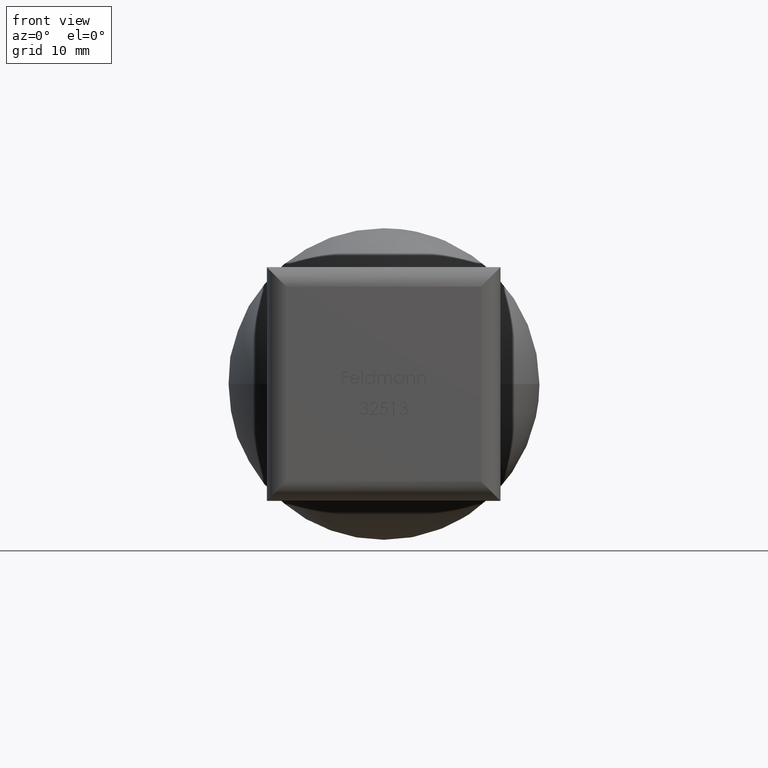
[diagram: clean part render]
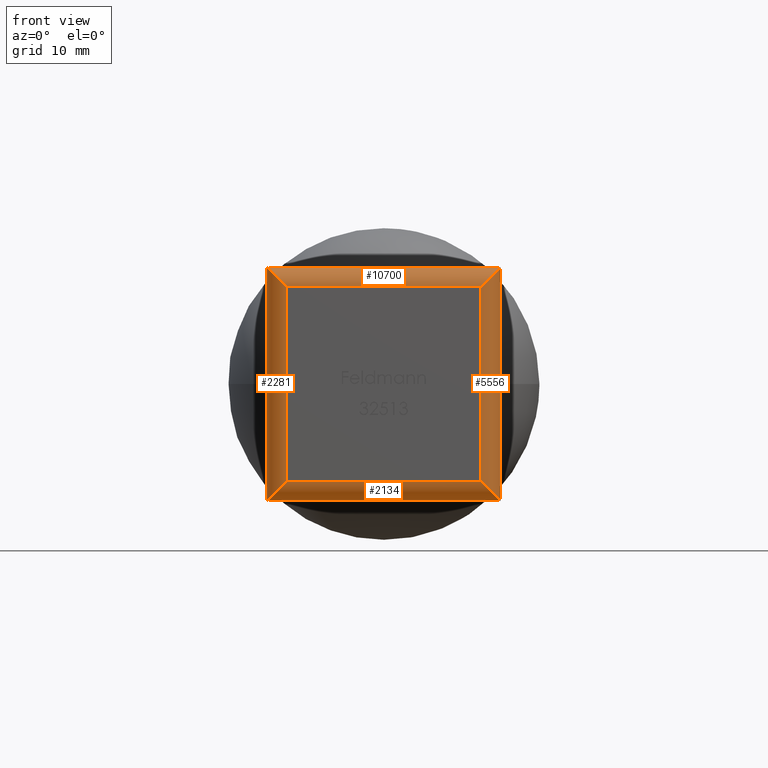
[diagram: same view with one multi-face feature highlighted, each face labeled with its STEP entity id]
A machine part, front view. The highlighted faces form ONE feature: a constant-radius fillet chain: 4 tangent blend faces with common blend radius 2 mm. The faces share edges in the B-rep.
Their STEP definitions:
[1] entity #2134 (Cylinder):
#228 = EDGE_CURVE ( 'NONE', #4317, #9577, #6723, .T. ) ;
#378 = CARTESIAN_POINT ( 'NONE',  ( 0.0000000000000000000, 0.0000000000000000000, -10.00000000000000000 ) ) ;
#775 = DIRECTION ( 'NONE',  ( 0.0000000000000000000, 0.0000000000000000000, 1.000000000000000000 ) ) ;
#1110 = CARTESIAN_POINT ( 'NONE',  ( 10.00000000000000200, 0.0000000000000000000, -10.00000000000000000 ) ) ;
#1271 = DIRECTION ( 'NONE',  ( 1.000000000000000000, -0.0000000000000000000, -0.0000000000000000000 ) ) ;
#1587 = AXIS2_PLACEMENT_3D ( 'NONE', #8578, #1732, #775 ) ;
#1732 = DIRECTION ( 'NONE',  ( -1.000000000000000000, 0.0000000000000000000, 0.0000000000000000000 ) ) ;
#1867 = CARTESIAN_POINT ( 'NONE',  ( -9.999999999999998200, 0.0000000000000000000, -10.00000000000000000 ) ) ;
#1964 = LINE ( 'NONE', #3178, #2098 ) ;
#2098 = VECTOR ( 'NONE', #10105, 1000.000000000000000 ) ;
#2134 = ADVANCED_FACE ( 'NONE', ( #2775 ), #7228, .T. ) ;
#2775 = FACE_OUTER_BOUND ( 'NONE', #11274, .T. ) ;
#2885 = CARTESIAN_POINT ( 'NONE',  ( 12.00000000000000400, 0.8284271247461902900, -12.00000000000000000 ) ) ;
#3174 =( BOUNDED_CURVE ( )  B_SPLINE_CURVE ( 3, ( #10126, #7412, #10000, #7439 ),
 .UNSPECIFIED., .F., .T. ) 
 B_SPLINE_CURVE_WITH_KNOTS ( ( 4, 4 ),
 ( 3.141592653589793100, 4.712388980384689700 ),
 .UNSPECIFIED. ) 
 CURVE ( )  GEOMETRIC_REPRESENTATION_ITEM ( )  RATIONAL_B_SPLINE_CURVE ( ( 1.000000000000000000, 0.8047378541243649400, 0.8047378541243649400, 1.000000000000000000 ) ) 
 REPRESENTATION_ITEM ( '' )  );
#3178 = CARTESIAN_POINT ( 'NONE',  ( -11.99999999999999800, 2.000000000000000000, -12.00000000000000000 ) ) ;
#3209 = EDGE_CURVE ( 'NONE', #4347, #4317, #3174, .T. ) ;
#3371 = ORIENTED_EDGE ( 'NONE', *, *, #228, .F. ) ;
#3770 = CARTESIAN_POINT ( 'NONE',  ( 12.00000000000000200, 2.000000000000000000, -12.00000000000000000 ) ) ;
#4284 = VERTEX_POINT ( 'NONE', #6966 ) ;
#4317 = VERTEX_POINT ( 'NONE', #1867 ) ;
#4347 = VERTEX_POINT ( 'NONE', #8831 ) ;
#4796 = ORIENTED_EDGE ( 'NONE', *, *, #3209, .F. ) ;
#5957 = ORIENTED_EDGE ( 'NONE', *, *, #8347, .F. ) ;
#6723 = LINE ( 'NONE', #378, #9848 ) ;
#6966 = CARTESIAN_POINT ( 'NONE',  ( 12.00000000000000200, 2.000000000000000000, -12.00000000000000000 ) ) ;
#7166 = CARTESIAN_POINT ( 'NONE',  ( 11.17157287525381200, 2.184664232470858900E-016, -11.17157287525381200 ) ) ;
#7221 = ORIENTED_EDGE ( 'NONE', *, *, #10741, .F. ) ;
#7228 = CYLINDRICAL_SURFACE ( 'NONE', #1587, 2.000000000000000000 ) ;
#7412 = CARTESIAN_POINT ( 'NONE',  ( -11.99999999999999500, 0.8284271247461902900, -12.00000000000000000 ) ) ;
#7439 = CARTESIAN_POINT ( 'NONE',  ( -9.999999999999998200, 0.0000000000000000000, -10.00000000000000000 ) ) ;
#7586 = CARTESIAN_POINT ( 'NONE',  ( 10.00000000000000200, 0.0000000000000000000, -10.00000000000000000 ) ) ;
#8347 = EDGE_CURVE ( 'NONE', #4284, #4347, #1964, .T. ) ;
#8578 = CARTESIAN_POINT ( 'NONE',  ( -11.99999999999999800, 2.000000000000000000, -10.00000000000000000 ) ) ;
#8831 = CARTESIAN_POINT ( 'NONE',  ( -11.99999999999999800, 2.000000000000000000, -12.00000000000000000 ) ) ;
#9577 = VERTEX_POINT ( 'NONE', #7586 ) ;
#9848 = VECTOR ( 'NONE', #1271, 1000.000000000000000 ) ;
#10000 = CARTESIAN_POINT ( 'NONE',  ( -11.17157287525380800, 2.152144457471159300E-016, -11.17157287525381200 ) ) ;
#10105 = DIRECTION ( 'NONE',  ( -1.000000000000000000, 0.0000000000000000000, 0.0000000000000000000 ) ) ;
#10126 = CARTESIAN_POINT ( 'NONE',  ( -11.99999999999999800, 2.000000000000000000, -12.00000000000000000 ) ) ;
#10741 = EDGE_CURVE ( 'NONE', #9577, #4284, #10845, .T. ) ;
#10845 =( BOUNDED_CURVE ( )  B_SPLINE_CURVE ( 3, ( #1110, #7166, #2885, #3770 ),
 .UNSPECIFIED., .F., .T. ) 
 B_SPLINE_CURVE_WITH_KNOTS ( ( 4, 4 ),
 ( 4.712388980384689700, 6.283185307179586200 ),
 .UNSPECIFIED. ) 
 CURVE ( )  GEOMETRIC_REPRESENTATION_ITEM ( )  RATIONAL_B_SPLINE_CURVE ( ( 1.000000000000000000, 0.8047378541243649400, 0.8047378541243649400, 1.000000000000000000 ) ) 
 REPRESENTATION_ITEM ( '' )  );
#11274 = EDGE_LOOP ( 'NONE', ( #7221, #3371, #4796, #5957 ) ) ;
[2] entity #5556 (Cylinder):
#147 = CARTESIAN_POINT ( 'NONE',  ( 12.00000000000000400, 2.000000000000000000, 12.00000000000000000 ) ) ;
#549 = EDGE_LOOP ( 'NONE', ( #6257, #1144, #6105, #5848 ) ) ;
#813 = LINE ( 'NONE', #1009, #7176 ) ;
#1009 = CARTESIAN_POINT ( 'NONE',  ( 10.00000000000000200, 0.0000000000000000000, -7.228014483236697500E-016 ) ) ;
#1110 = CARTESIAN_POINT ( 'NONE',  ( 10.00000000000000200, 0.0000000000000000000, -10.00000000000000000 ) ) ;
#1144 = ORIENTED_EDGE ( 'NONE', *, *, #5038, .F. ) ;
#1382 = DIRECTION ( 'NONE',  ( -1.000000000000000000, 0.0000000000000000000, 0.0000000000000000000 ) ) ;
#2333 = VERTEX_POINT ( 'NONE', #147 ) ;
#2832 = CYLINDRICAL_SURFACE ( 'NONE', #4496, 2.000000000000000000 ) ;
#2885 = CARTESIAN_POINT ( 'NONE',  ( 12.00000000000000400, 0.8284271247461902900, -12.00000000000000000 ) ) ;
#3006 = CARTESIAN_POINT ( 'NONE',  ( 10.00000000000000400, 0.0000000000000000000, 10.00000000000000000 ) ) ;
#3397 = VECTOR ( 'NONE', #11244, 1000.000000000000000 ) ;
#3770 = CARTESIAN_POINT ( 'NONE',  ( 12.00000000000000200, 2.000000000000000000, -12.00000000000000000 ) ) ;
#4275 = CARTESIAN_POINT ( 'NONE',  ( 12.00000000000000200, 2.000000000000000000, -12.00000000000000000 ) ) ;
#4284 = VERTEX_POINT ( 'NONE', #6966 ) ;
#4496 = AXIS2_PLACEMENT_3D ( 'NONE', #9466, #10275, #1382 ) ;
#5038 = EDGE_CURVE ( 'NONE', #2333, #4284, #7995, .T. ) ;
#5182 = EDGE_CURVE ( 'NONE', #9577, #10792, #813, .T. ) ;
#5556 = ADVANCED_FACE ( 'NONE', ( #9761 ), #2832, .T. ) ;
#5848 = ORIENTED_EDGE ( 'NONE', *, *, #5182, .F. ) ;
#6105 = ORIENTED_EDGE ( 'NONE', *, *, #11069, .F. ) ;
#6257 = ORIENTED_EDGE ( 'NONE', *, *, #10741, .T. ) ;
#6966 = CARTESIAN_POINT ( 'NONE',  ( 12.00000000000000200, 2.000000000000000000, -12.00000000000000000 ) ) ;
#7077 = DIRECTION ( 'NONE',  ( 7.228014483236695800E-017, -0.0000000000000000000, 1.000000000000000000 ) ) ;
#7166 = CARTESIAN_POINT ( 'NONE',  ( 11.17157287525381200, 2.184664232470858900E-016, -11.17157287525381200 ) ) ;
#7176 = VECTOR ( 'NONE', #7077, 1000.000000000000000 ) ;
#7489 =( BOUNDED_CURVE ( )  B_SPLINE_CURVE ( 3, ( #11103, #7589, #10383, #9404 ),
 .UNSPECIFIED., .F., .F. ) 
 B_SPLINE_CURVE_WITH_KNOTS ( ( 4, 4 ),
 ( 1.570796326794896600, 3.141592653589793100 ),
 .UNSPECIFIED. ) 
 CURVE ( )  GEOMETRIC_REPRESENTATION_ITEM ( )  RATIONAL_B_SPLINE_CURVE ( ( 1.000000000000000000, 0.8047378541243649400, 0.8047378541243649400, 1.000000000000000000 ) ) 
 REPRESENTATION_ITEM ( '' )  );
#7586 = CARTESIAN_POINT ( 'NONE',  ( 10.00000000000000200, 0.0000000000000000000, -10.00000000000000000 ) ) ;
#7589 = CARTESIAN_POINT ( 'NONE',  ( 11.17157287525381200, 3.619427204118298400E-016, 11.17157287525380800 ) ) ;
#7995 = LINE ( 'NONE', #4275, #3397 ) ;
#9404 = CARTESIAN_POINT ( 'NONE',  ( 12.00000000000000400, 2.000000000000000000, 12.00000000000000000 ) ) ;
#9466 = CARTESIAN_POINT ( 'NONE',  ( 10.00000000000000200, 2.000000000000000000, -12.00000000000000000 ) ) ;
#9577 = VERTEX_POINT ( 'NONE', #7586 ) ;
#9761 = FACE_OUTER_BOUND ( 'NONE', #549, .T. ) ;
#10275 = DIRECTION ( 'NONE',  ( -7.228014483236695800E-017, 0.0000000000000000000, -1.000000000000000000 ) ) ;
#10383 = CARTESIAN_POINT ( 'NONE',  ( 12.00000000000000400, 0.8284271247461899600, 11.99999999999999500 ) ) ;
#10741 = EDGE_CURVE ( 'NONE', #9577, #4284, #10845, .T. ) ;
#10792 = VERTEX_POINT ( 'NONE', #3006 ) ;
#10845 =( BOUNDED_CURVE ( )  B_SPLINE_CURVE ( 3, ( #1110, #7166, #2885, #3770 ),
 .UNSPECIFIED., .F., .T. ) 
 B_SPLINE_CURVE_WITH_KNOTS ( ( 4, 4 ),
 ( 4.712388980384689700, 6.283185307179586200 ),
 .UNSPECIFIED. ) 
 CURVE ( )  GEOMETRIC_REPRESENTATION_ITEM ( )  RATIONAL_B_SPLINE_CURVE ( ( 1.000000000000000000, 0.8047378541243649400, 0.8047378541243649400, 1.000000000000000000 ) ) 
 REPRESENTATION_ITEM ( '' )  );
#11069 = EDGE_CURVE ( 'NONE', #10792, #2333, #7489, .T. ) ;
#11103 = CARTESIAN_POINT ( 'NONE',  ( 10.00000000000000400, 0.0000000000000000000, 10.00000000000000000 ) ) ;
#11244 = DIRECTION ( 'NONE',  ( -7.228014483236695800E-017, 0.0000000000000000000, -1.000000000000000000 ) ) ;
[3] entity #10700 (Cylinder):
#147 = CARTESIAN_POINT ( 'NONE',  ( 12.00000000000000400, 2.000000000000000000, 12.00000000000000000 ) ) ;
#303 = CARTESIAN_POINT ( 'NONE',  ( -11.99999999999999500, 2.000000000000000000, 10.00000000000000000 ) ) ;
#354 = CARTESIAN_POINT ( 'NONE',  ( -11.99999999999999500, 2.000000000000000000, 12.00000000000000000 ) ) ;
#399 =( BOUNDED_CURVE ( )  B_SPLINE_CURVE ( 3, ( #11137, #7702, #2528, #1502 ),
 .UNSPECIFIED., .F., .T. ) 
 B_SPLINE_CURVE_WITH_KNOTS ( ( 4, 4 ),
 ( 0.0000000000000000000, 1.570796326794896100 ),
 .UNSPECIFIED. ) 
 CURVE ( )  GEOMETRIC_REPRESENTATION_ITEM ( )  RATIONAL_B_SPLINE_CURVE ( ( 1.000000000000000000, 0.8047378541243650500, 0.8047378541243650500, 1.000000000000000000 ) ) 
 REPRESENTATION_ITEM ( '' )  );
#665 = ORIENTED_EDGE ( 'NONE', *, *, #6495, .F. ) ;
#1156 = CARTESIAN_POINT ( 'NONE',  ( -9.999999999999994700, 0.0000000000000000000, 10.00000000000000000 ) ) ;
#1301 = ORIENTED_EDGE ( 'NONE', *, *, #9481, .T. ) ;
#1502 = CARTESIAN_POINT ( 'NONE',  ( -9.999999999999994700, 0.0000000000000000000, 10.00000000000000000 ) ) ;
#1686 = VECTOR ( 'NONE', #2872, 1000.000000000000000 ) ;
#2010 = CARTESIAN_POINT ( 'NONE',  ( 0.0000000000000000000, 0.0000000000000000000, 10.00000000000000000 ) ) ;
#2119 = VERTEX_POINT ( 'NONE', #5908 ) ;
#2182 = VERTEX_POINT ( 'NONE', #1156 ) ;
#2333 = VERTEX_POINT ( 'NONE', #147 ) ;
#2528 = CARTESIAN_POINT ( 'NONE',  ( -11.17157287525380700, 5.920210210356020200E-016, 11.17157287525381000 ) ) ;
#2872 = DIRECTION ( 'NONE',  ( -1.000000000000000000, 0.0000000000000000000, -0.0000000000000000000 ) ) ;
#3006 = CARTESIAN_POINT ( 'NONE',  ( 10.00000000000000400, 0.0000000000000000000, 10.00000000000000000 ) ) ;
#3108 = VECTOR ( 'NONE', #6437, 1000.000000000000000 ) ;
#3736 = DIRECTION ( 'NONE',  ( 0.0000000000000000000, 0.0000000000000000000, -1.000000000000000000 ) ) ;
#4760 = LINE ( 'NONE', #354, #3108 ) ;
#4788 = CYLINDRICAL_SURFACE ( 'NONE', #4955, 2.000000000000000000 ) ;
#4884 = EDGE_LOOP ( 'NONE', ( #1301, #10211, #7382, #665 ) ) ;
#4955 = AXIS2_PLACEMENT_3D ( 'NONE', #303, #10619, #3736 ) ;
#5908 = CARTESIAN_POINT ( 'NONE',  ( -11.99999999999999500, 2.000000000000000000, 12.00000000000000000 ) ) ;
#6437 = DIRECTION ( 'NONE',  ( 1.000000000000000000, -0.0000000000000000000, 0.0000000000000000000 ) ) ;
#6495 = EDGE_CURVE ( 'NONE', #2119, #2333, #4760, .T. ) ;
#7382 = ORIENTED_EDGE ( 'NONE', *, *, #11069, .T. ) ;
#7489 =( BOUNDED_CURVE ( )  B_SPLINE_CURVE ( 3, ( #11103, #7589, #10383, #9404 ),
 .UNSPECIFIED., .F., .F. ) 
 B_SPLINE_CURVE_WITH_KNOTS ( ( 4, 4 ),
 ( 1.570796326794896600, 3.141592653589793100 ),
 .UNSPECIFIED. ) 
 CURVE ( )  GEOMETRIC_REPRESENTATION_ITEM ( )  RATIONAL_B_SPLINE_CURVE ( ( 1.000000000000000000, 0.8047378541243649400, 0.8047378541243649400, 1.000000000000000000 ) ) 
 REPRESENTATION_ITEM ( '' )  );
#7589 = CARTESIAN_POINT ( 'NONE',  ( 11.17157287525381200, 3.619427204118298400E-016, 11.17157287525380800 ) ) ;
#7702 = CARTESIAN_POINT ( 'NONE',  ( -11.99999999999999300, 0.8284271247461902900, 11.99999999999999600 ) ) ;
#8562 = FACE_OUTER_BOUND ( 'NONE', #4884, .T. ) ;
#9259 = EDGE_CURVE ( 'NONE', #10792, #2182, #10071, .T. ) ;
#9404 = CARTESIAN_POINT ( 'NONE',  ( 12.00000000000000400, 2.000000000000000000, 12.00000000000000000 ) ) ;
#9481 = EDGE_CURVE ( 'NONE', #2119, #2182, #399, .T. ) ;
#10071 = LINE ( 'NONE', #2010, #1686 ) ;
#10211 = ORIENTED_EDGE ( 'NONE', *, *, #9259, .F. ) ;
#10383 = CARTESIAN_POINT ( 'NONE',  ( 12.00000000000000400, 0.8284271247461899600, 11.99999999999999500 ) ) ;
#10619 = DIRECTION ( 'NONE',  ( 1.000000000000000000, -0.0000000000000000000, 0.0000000000000000000 ) ) ;
#10700 = ADVANCED_FACE ( 'NONE', ( #8562 ), #4788, .T. ) ;
#10792 = VERTEX_POINT ( 'NONE', #3006 ) ;
#11069 = EDGE_CURVE ( 'NONE', #10792, #2333, #7489, .T. ) ;
#11103 = CARTESIAN_POINT ( 'NONE',  ( 10.00000000000000400, 0.0000000000000000000, 10.00000000000000000 ) ) ;
#11137 = CARTESIAN_POINT ( 'NONE',  ( -11.99999999999999500, 2.000000000000000000, 12.00000000000000000 ) ) ;
[4] entity #2281 (Cylinder):
#100 = EDGE_LOOP ( 'NONE', ( #8218, #6388, #10041, #9777 ) ) ;
#244 = DIRECTION ( 'NONE',  ( 1.000000000000000000, 0.0000000000000000000, 0.0000000000000000000 ) ) ;
#399 =( BOUNDED_CURVE ( )  B_SPLINE_CURVE ( 3, ( #11137, #7702, #2528, #1502 ),
 .UNSPECIFIED., .F., .T. ) 
 B_SPLINE_CURVE_WITH_KNOTS ( ( 4, 4 ),
 ( 0.0000000000000000000, 1.570796326794896100 ),
 .UNSPECIFIED. ) 
 CURVE ( )  GEOMETRIC_REPRESENTATION_ITEM ( )  RATIONAL_B_SPLINE_CURVE ( ( 1.000000000000000000, 0.8047378541243650500, 0.8047378541243650500, 1.000000000000000000 ) ) 
 REPRESENTATION_ITEM ( '' )  );
#469 = LINE ( 'NONE', #7788, #1425 ) ;
#747 = EDGE_CURVE ( 'NONE', #2182, #4317, #469, .T. ) ;
#1055 = DIRECTION ( 'NONE',  ( -1.445602896647339200E-016, 0.0000000000000000000, -1.000000000000000000 ) ) ;
#1134 = CARTESIAN_POINT ( 'NONE',  ( -9.999999999999998200, 2.000000000000000000, -12.00000000000000000 ) ) ;
#1156 = CARTESIAN_POINT ( 'NONE',  ( -9.999999999999994700, 0.0000000000000000000, 10.00000000000000000 ) ) ;
#1330 = EDGE_CURVE ( 'NONE', #4347, #2119, #6325, .T. ) ;
#1425 = VECTOR ( 'NONE', #1055, 1000.000000000000000 ) ;
#1502 = CARTESIAN_POINT ( 'NONE',  ( -9.999999999999994700, 0.0000000000000000000, 10.00000000000000000 ) ) ;
#1867 = CARTESIAN_POINT ( 'NONE',  ( -9.999999999999998200, 0.0000000000000000000, -10.00000000000000000 ) ) ;
#2119 = VERTEX_POINT ( 'NONE', #5908 ) ;
#2182 = VERTEX_POINT ( 'NONE', #1156 ) ;
#2281 = ADVANCED_FACE ( 'NONE', ( #6696 ), #2347, .T. ) ;
#2347 = CYLINDRICAL_SURFACE ( 'NONE', #8557, 2.000000000000000000 ) ;
#2528 = CARTESIAN_POINT ( 'NONE',  ( -11.17157287525380700, 5.920210210356020200E-016, 11.17157287525381000 ) ) ;
#2871 = DIRECTION ( 'NONE',  ( 1.445602896647339200E-016, -0.0000000000000000000, 1.000000000000000000 ) ) ;
#3109 = DIRECTION ( 'NONE',  ( 1.445602896647339200E-016, -0.0000000000000000000, 1.000000000000000000 ) ) ;
#3174 =( BOUNDED_CURVE ( )  B_SPLINE_CURVE ( 3, ( #10126, #7412, #10000, #7439 ),
 .UNSPECIFIED., .F., .T. ) 
 B_SPLINE_CURVE_WITH_KNOTS ( ( 4, 4 ),
 ( 3.141592653589793100, 4.712388980384689700 ),
 .UNSPECIFIED. ) 
 CURVE ( )  GEOMETRIC_REPRESENTATION_ITEM ( )  RATIONAL_B_SPLINE_CURVE ( ( 1.000000000000000000, 0.8047378541243649400, 0.8047378541243649400, 1.000000000000000000 ) ) 
 REPRESENTATION_ITEM ( '' )  );
#3209 = EDGE_CURVE ( 'NONE', #4347, #4317, #3174, .T. ) ;
#4317 = VERTEX_POINT ( 'NONE', #1867 ) ;
#4347 = VERTEX_POINT ( 'NONE', #8831 ) ;
#5908 = CARTESIAN_POINT ( 'NONE',  ( -11.99999999999999500, 2.000000000000000000, 12.00000000000000000 ) ) ;
#6325 = LINE ( 'NONE', #10109, #6464 ) ;
#6388 = ORIENTED_EDGE ( 'NONE', *, *, #747, .F. ) ;
#6464 = VECTOR ( 'NONE', #3109, 1000.000000000000000 ) ;
#6696 = FACE_OUTER_BOUND ( 'NONE', #100, .T. ) ;
#7412 = CARTESIAN_POINT ( 'NONE',  ( -11.99999999999999500, 0.8284271247461902900, -12.00000000000000000 ) ) ;
#7439 = CARTESIAN_POINT ( 'NONE',  ( -9.999999999999998200, 0.0000000000000000000, -10.00000000000000000 ) ) ;
#7702 = CARTESIAN_POINT ( 'NONE',  ( -11.99999999999999300, 0.8284271247461902900, 11.99999999999999600 ) ) ;
#7788 = CARTESIAN_POINT ( 'NONE',  ( -9.999999999999996400, 0.0000000000000000000, 1.445602896647338700E-015 ) ) ;
#8218 = ORIENTED_EDGE ( 'NONE', *, *, #3209, .T. ) ;
#8557 = AXIS2_PLACEMENT_3D ( 'NONE', #1134, #2871, #244 ) ;
#8831 = CARTESIAN_POINT ( 'NONE',  ( -11.99999999999999800, 2.000000000000000000, -12.00000000000000000 ) ) ;
#9481 = EDGE_CURVE ( 'NONE', #2119, #2182, #399, .T. ) ;
#9777 = ORIENTED_EDGE ( 'NONE', *, *, #1330, .F. ) ;
#10000 = CARTESIAN_POINT ( 'NONE',  ( -11.17157287525380800, 2.152144457471159300E-016, -11.17157287525381200 ) ) ;
#10041 = ORIENTED_EDGE ( 'NONE', *, *, #9481, .F. ) ;
#10109 = CARTESIAN_POINT ( 'NONE',  ( -11.99999999999999800, 2.000000000000000000, -12.00000000000000000 ) ) ;
#10126 = CARTESIAN_POINT ( 'NONE',  ( -11.99999999999999800, 2.000000000000000000, -12.00000000000000000 ) ) ;
#11137 = CARTESIAN_POINT ( 'NONE',  ( -11.99999999999999500, 2.000000000000000000, 12.00000000000000000 ) ) ;